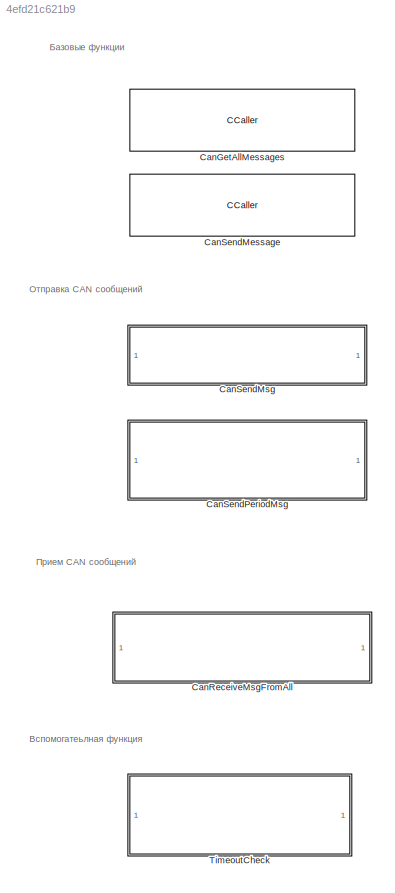
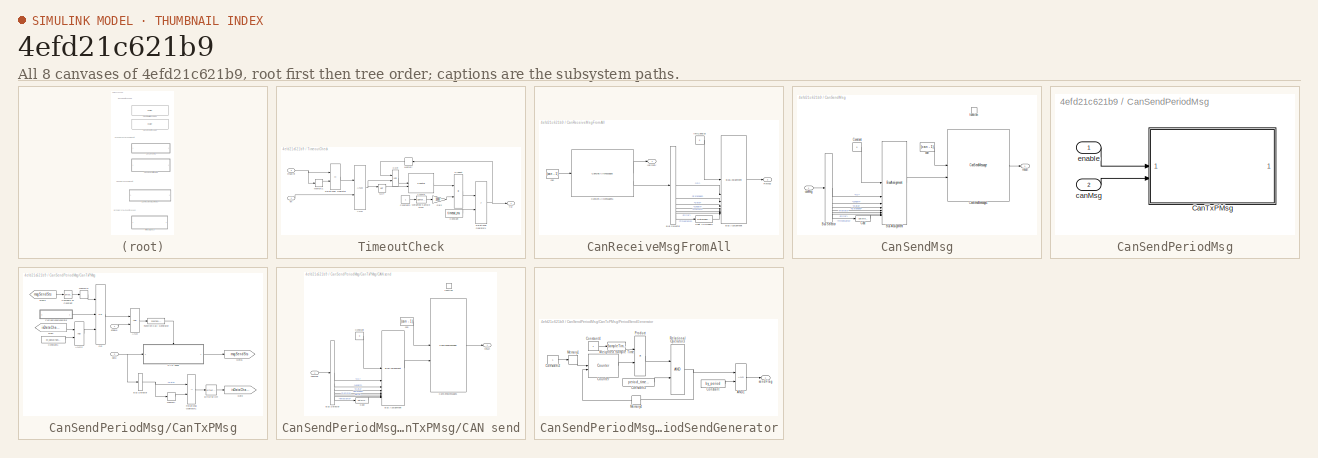
[diagram: thumbnail index - all 8 canvases of the model, root first then tree order]
MODEL slx_4efd21c621b9
KIND library
CONFIG AbsTol = auto
CONFIG EnableMultiTasking = off
CONFIG FixedStep = auto
CONFIG MaxStep = auto
CONFIG MinStep = auto
CONFIG RelTol = 1e-3
CONFIG SampleTimeConstraint = Unconstrained
CONFIG SolverName = VariableStepAuto
CONFIG StartTime = 0.0
CONFIG StopTime = 10.0
BLOCK [CCaller] CanGetAllMessages
  FunctionName = CanGetAllMessages
  PortSpecificationStruct = %)30     .    < 4   8    (     @         %    "     ,    !     0         %  0 "0    $    _    07)G3F%M90  4&]R=$YA;64 4V-O<&4     26YD97@     5'EP90      4VEZ90      27-';&]B86P   X    P    !@    @    $          4    (     0    ,    !         !   P!O=70 #@   #     &    "     0         !0    @    !     P    $         $  # &]U=  .    .     8    (    !          %    "     $    &     0         0    !@...<+1469ch>
BLOCK [CCaller] CanSendMessage
  FunctionName = CanSendMessage
  PortSpecificationStruct = %)30     .    < 4   8    (     @         %    "     ,    !     0         %  0 "0    $    _    07)G3F%M90  4&]R=$YA;64 4V-O<&4     26YD97@     5'EP90      4VEZ90      27-';&]B86P   X    P    !@    @    $          4    (     0    ,    !         !   P!O=70 #@   #     &    "     0         !0    @    !     P    $         $  # &]U=  .    .     8    (    !          %    "     $    &     0         0    !@...<+1469ch>
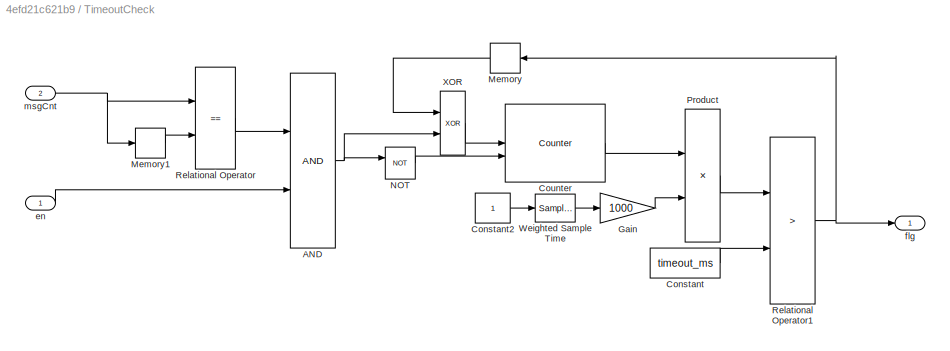
BLOCK [SubSystem] TimeoutCheck
BLOCK [Logic] TimeoutCheck/AND
  AllPortsSameDT = off
  OutDataTypeStr = boolean
BLOCK [Constant] TimeoutCheck/Constant
  OutDataTypeStr = uint32
  Value = timeout_ms
BLOCK [Constant] TimeoutCheck/Constant2
  OutDataTypeStr = uint32
BLOCK [Reference] TimeoutCheck/Counter  REF=dspswit3/Counter
  SourceBlock = dspswit3/Counter
  SourceType = Counter
BLOCK [Gain] TimeoutCheck/Gain
  Gain = 1000
  OutDataTypeStr = uint32
  ParamDataTypeStr = single
  RndMeth = Simplest
BLOCK [Memory] TimeoutCheck/Memory
  InheritSampleTime = on
  NameLocation = top
BLOCK [Memory] TimeoutCheck/Memory1
  InheritSampleTime = on
BLOCK [Logic] TimeoutCheck/NOT
  AllPortsSameDT = off
  IconShape = distinctive
  Operator = NOT
  OutDataTypeStr = boolean
BLOCK [Product] TimeoutCheck/Product
  OutDataTypeStr = uint32
  RndMeth = Simplest
BLOCK [RelationalOperator] TimeoutCheck/Relational Operator
  InputSameDT = off
  Operator = ==
  OutDataTypeStr = boolean
  RndMeth = Simplest
  ZeroCross = off
BLOCK [RelationalOperator] TimeoutCheck/Relational Operator1
  InputSameDT = off
  Operator = >
  OutDataTypeStr = boolean
  RndMeth = Simplest
  ZeroCross = off
BLOCK [SampleTimeMath] TimeoutCheck/Weighted Sample Time
  OutDataTypeStr = single
  TsampMathOp = Ts Only
  weightValue = uint32(1)
BLOCK [Logic] TimeoutCheck/XOR
  AllPortsSameDT = off
  Operator = XOR
  OutDataTypeStr = boolean
BLOCK [Inport] TimeoutCheck/en
BLOCK [Outport] TimeoutCheck/flg
BLOCK [Inport] TimeoutCheck/msgCnt
  Port = 2
BLOCK [SubSystem] СanReceiveMsgFromAll
  TreatAsAtomicUnit = on
BLOCK [BusAssignment] СanReceiveMsgFromAll/Bus Assignment
  AssignedSignals = ID,Extended,Data,Length,Remote,Error,Timestamp
BLOCK [BusSelector] СanReceiveMsgFromAll/Bus Selector
  OutputSignals = ID,Extended,Data,Length,Remote,Error,Timestamp
BLOCK [Reference] СanReceiveMsgFromAll/CanGetAllMessages1  REF=$bdroot/CanGetAllMessages
  SourceBlock = $bdroot/CanGetAllMessages
  SourceType = CCaller
BLOCK [DataTypeConversion] СanReceiveMsgFromAll/Cast To Double
  OutDataTypeStr = double
  RndMeth = Floor
  SaturateOnIntegerOverflow = off
BLOCK [Outport] СanReceiveMsgFromAll/IsEmpty
BLOCK [Outport] СanReceiveMsgFromAll/RxMsg
  OutDataTypeStr = Bus: CAN_MESSAGE_BUS
  Port = 2
BLOCK [Constant] СanReceiveMsgFromAll/can
  OutDataTypeStr = int32
  Value = (can - 1)
BLOCK [Constant] СanReceiveMsgFromAll/initCanBus
  OutDataTypeStr = Bus: CAN_MESSAGE_BUS
  Value = 0
BLOCK [SubSystem] СanSendMsg
BLOCK [BusAssignment] СanSendMsg/Bus Assignment
  AssignedSignals = ID,Length,Data,Extended,Remote,Error,Timestamp
BLOCK [BusSelector] СanSendMsg/Bus Selector
  OutputSignals = ID,Length,Data,Extended,Remote,Error,Timestamp
BLOCK [Reference] СanSendMsg/CanSendMessage1  REF=$bdroot/CanSendMessage
  SourceBlock = $bdroot/CanSendMessage
  SourceType = CCaller
BLOCK [DataTypeConversion] СanSendMsg/Cast
  OutDataTypeStr = uint32
  RndMeth = Simplest
  SaturateOnIntegerOverflow = off
BLOCK [Constant] СanSendMsg/Constant
  OutDataTypeStr = Bus: CAN_Msg_t
  Value = 0
BLOCK [Constant] СanSendMsg/can
  OutDataTypeStr = int32
  Value = (can - 1)
BLOCK [Inport] СanSendMsg/canMsg
  OutDataTypeStr = Bus: CAN_MESSAGE_BUS
BLOCK [TriggerPort] СanSendMsg/function
  StatesWhenEnabling = held
  TriggerType = function-call
  VariantControl = (inherit)
BLOCK [Outport] СanSendMsg/result
  OutDataTypeStr = boolean
BLOCK [SubSystem] СanSendPeriodMsg
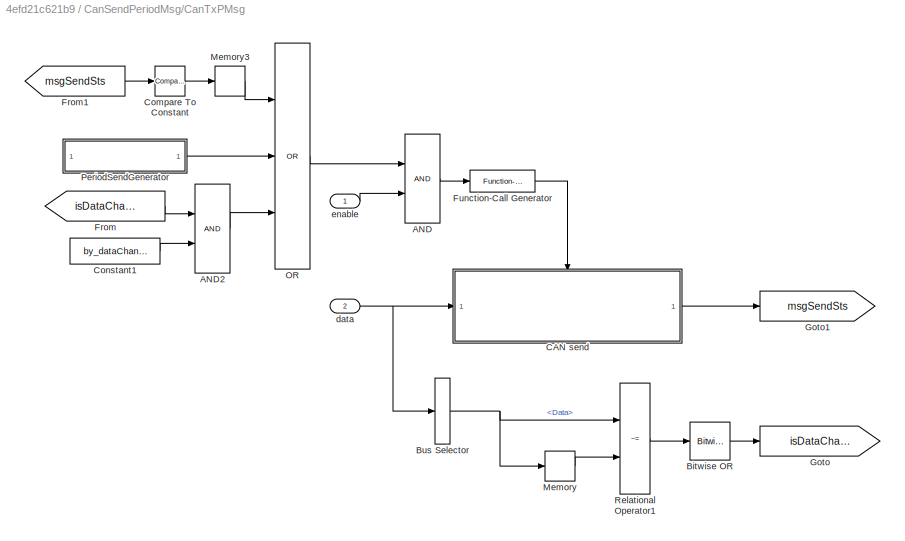
BLOCK [SubSystem] СanSendPeriodMsg/CanTxPMsg
  SystemSampleTime = sample_time
  TreatAsAtomicUnit = on
BLOCK [Logic] СanSendPeriodMsg/CanTxPMsg/AND
  AllPortsSameDT = off
  OutDataTypeStr = boolean
BLOCK [Logic] СanSendPeriodMsg/CanTxPMsg/AND2
  AllPortsSameDT = off
  OutDataTypeStr = boolean
BLOCK [Reference] СanSendPeriodMsg/CanTxPMsg/Bitwise OR  REF=simulink/Logic and Bit
Operations/Bitwise
Operator
  LibrarySourceBlock = simulink/Quick Insert/Logic and Bit\nOperations/Bitwise OR
  SourceBlock = simulink/Logic and Bit\nOperations/Bitwise\nOperator
  SourceType = Bitwise Operator
BLOCK [BusSelector] СanSendPeriodMsg/CanTxPMsg/Bus Selector
  OutputSignals = Data
BLOCK [SubSystem] СanSendPeriodMsg/CanTxPMsg/CAN send
  TreatAsAtomicUnit = on
BLOCK [BusAssignment] СanSendPeriodMsg/CanTxPMsg/CAN send/Bus Assignment
  AssignedSignals = ID,Length,Data,Extended,Remote,Error,Timestamp
BLOCK [BusSelector] СanSendPeriodMsg/CanTxPMsg/CAN send/Bus Selector
  OutputSignals = ID,Length,Data,Extended,Remote,Error,Timestamp
BLOCK [Reference] СanSendPeriodMsg/CanTxPMsg/CAN send/CanSendMessage1  REF=$bdroot/CanSendMessage
  SourceBlock = $bdroot/CanSendMessage
  SourceType = CCaller
BLOCK [DataTypeConversion] СanSendPeriodMsg/CanTxPMsg/CAN send/Cast
  OutDataTypeStr = uint32
  RndMeth = Simplest
  SaturateOnIntegerOverflow = off
BLOCK [Constant] СanSendPeriodMsg/CanTxPMsg/CAN send/Constant
  OutDataTypeStr = Bus: CAN_Msg_t
  Value = 0
BLOCK [Constant] СanSendPeriodMsg/CanTxPMsg/CAN send/can
  OutDataTypeStr = int32
  Value = (can - 1)
BLOCK [Inport] СanSendPeriodMsg/CanTxPMsg/CAN send/canMsg
  OutDataTypeStr = Bus: CAN_MESSAGE_BUS
BLOCK [TriggerPort] СanSendPeriodMsg/CanTxPMsg/CAN send/function
  StatesWhenEnabling = held
  TriggerType = function-call
  VariantControl = (inherit)
BLOCK [Outport] СanSendPeriodMsg/CanTxPMsg/CAN send/result
  OutDataTypeStr = boolean
BLOCK [Reference] СanSendPeriodMsg/CanTxPMsg/Compare To Constant  REF=simulink/Logic and Bit
Operations/Compare
To Constant
  SourceBlock = simulink/Logic and Bit\nOperations/Compare\nTo Constant
  SourceType = Compare To Constant
BLOCK [Constant] СanSendPeriodMsg/CanTxPMsg/Constant1
  OutDataTypeStr = boolean
  Value = by_dataChange
BLOCK [From] СanSendPeriodMsg/CanTxPMsg/From
  GotoTag = isDataChanged
BLOCK [From] СanSendPeriodMsg/CanTxPMsg/From1
  GotoTag = msgSendSts
BLOCK [Reference] СanSendPeriodMsg/CanTxPMsg/Function-Call Generator  REF=simulink/Ports &
Subsystems/Function-Call
Generator
  SourceBlock = simulink/Ports &\nSubsystems/Function-Call\nGenerator
  SourceType = Function-Call Generator
BLOCK [Goto] СanSendPeriodMsg/CanTxPMsg/Goto
  GotoTag = isDataChanged
BLOCK [Goto] СanSendPeriodMsg/CanTxPMsg/Goto1
  GotoTag = msgSendSts
BLOCK [Memory] СanSendPeriodMsg/CanTxPMsg/Memory
  InheritSampleTime = on
BLOCK [Memory] СanSendPeriodMsg/CanTxPMsg/Memory3
  InheritSampleTime = on
BLOCK [Logic] СanSendPeriodMsg/CanTxPMsg/OR
  AllPortsSameDT = off
  Inputs = 3
  Operator = OR
  OutDataTypeStr = boolean
BLOCK [SubSystem] СanSendPeriodMsg/CanTxPMsg/PeriodSendGenerator
BLOCK [Logic] СanSendPeriodMsg/CanTxPMsg/PeriodSendGenerator/AND1
  AllPortsSameDT = off
  OutDataTypeStr = boolean
BLOCK [Constant] СanSendPeriodMsg/CanTxPMsg/PeriodSendGenerator/Constant
  OutDataTypeStr = boolean
  Value = by_period
BLOCK [Constant] СanSendPeriodMsg/CanTxPMsg/PeriodSendGenerator/Constant2
  OutDataTypeStr = uint32
BLOCK [Constant] СanSendPeriodMsg/CanTxPMsg/PeriodSendGenerator/Constant3
  OutDataTypeStr = uint32
  Value = period_time*1000
BLOCK [Constant] СanSendPeriodMsg/CanTxPMsg/PeriodSendGenerator/Constant4
  OutDataTypeStr = uint32
BLOCK [Reference] СanSendPeriodMsg/CanTxPMsg/PeriodSendGenerator/Counter  REF=dspswit3/Counter
  SourceBlock = dspswit3/Counter
  SourceType = Counter
BLOCK [Memory] СanSendPeriodMsg/CanTxPMsg/PeriodSendGenerator/Memory1
  InheritSampleTime = on
BLOCK [Memory] СanSendPeriodMsg/CanTxPMsg/PeriodSendGenerator/Memory4
  InheritSampleTime = on
  NameLocation = top
BLOCK [Product] СanSendPeriodMsg/CanTxPMsg/PeriodSendGenerator/Product
  OutDataTypeStr = uint32
  RndMeth = Simplest
BLOCK [RelationalOperator] СanSendPeriodMsg/CanTxPMsg/PeriodSendGenerator/Relational Operator3
  InputSameDT = off
  OutDataTypeStr = boolean
  RndMeth = Simplest
  ZeroCross = off
BLOCK [SampleTimeMath] СanSendPeriodMsg/CanTxPMsg/PeriodSendGenerator/Weighted Sample Time
  OutDataTypeStr = single
  TsampMathOp = Ts Only
  weightValue = uint32(1000)
BLOCK [Outport] СanSendPeriodMsg/CanTxPMsg/PeriodSendGenerator/sendFlag
BLOCK [RelationalOperator] СanSendPeriodMsg/CanTxPMsg/Relational Operator1
  InputSameDT = off
  Operator = ~=
  OutDataTypeStr = boolean
  RndMeth = Simplest
BLOCK [Inport] СanSendPeriodMsg/CanTxPMsg/data
  Port = 2
BLOCK [Inport] СanSendPeriodMsg/CanTxPMsg/enable
  OutDataTypeStr = boolean
BLOCK [Inport] СanSendPeriodMsg/canMsg
  OutDataTypeStr = Bus: CAN_MESSAGE_BUS
  Port = 2
BLOCK [Inport] СanSendPeriodMsg/enable
  OutDataTypeStr = boolean
ANNOTATION (root): Базовые функции
ANNOTATION (root): Вспомогатеьлная функция
ANNOTATION (root): Отправка CAN сообщений
ANNOTATION (root): Прием CAN сообщений
NET TimeoutCheck/AND:1 -> TimeoutCheck/NOT:1, TimeoutCheck/XOR:2
LINE TimeoutCheck/Constant2:1 -> TimeoutCheck/Weighted Sample Time:1
LINE TimeoutCheck/Constant:1 -> TimeoutCheck/Relational Operator1:2
LINE TimeoutCheck/Counter:1 -> TimeoutCheck/Product:1
LINE TimeoutCheck/Gain:1 -> TimeoutCheck/Product:2
LINE TimeoutCheck/Memory1:1 -> TimeoutCheck/Relational Operator:2
LINE TimeoutCheck/Memory:1 -> TimeoutCheck/XOR:1
LINE TimeoutCheck/NOT:1 -> TimeoutCheck/Counter:2
LINE TimeoutCheck/Product:1 -> TimeoutCheck/Relational Operator1:1
NET TimeoutCheck/Relational Operator1:1 -> TimeoutCheck/Memory:1, TimeoutCheck/flg:1
LINE TimeoutCheck/Relational Operator:1 -> TimeoutCheck/AND:1
LINE TimeoutCheck/Weighted Sample Time:1 -> TimeoutCheck/Gain:1
LINE TimeoutCheck/XOR:1 -> TimeoutCheck/Counter:1
LINE TimeoutCheck/en:1 -> TimeoutCheck/AND:2
NET TimeoutCheck/msgCnt:1 -> TimeoutCheck/Memory1:1, TimeoutCheck/Relational Operator:1
LINE СanReceiveMsgFromAll/Bus Assignment:1 -> СanReceiveMsgFromAll/RxMsg:1
LINE СanReceiveMsgFromAll/Bus Selector:1 -> СanReceiveMsgFromAll/Bus Assignment:2
LINE СanReceiveMsgFromAll/Bus Selector:2 -> СanReceiveMsgFromAll/Bus Assignment:3
LINE СanReceiveMsgFromAll/Bus Selector:3 -> СanReceiveMsgFromAll/Bus Assignment:4
LINE СanReceiveMsgFromAll/Bus Selector:4 -> СanReceiveMsgFromAll/Bus Assignment:5
LINE СanReceiveMsgFromAll/Bus Selector:5 -> СanReceiveMsgFromAll/Bus Assignment:6
LINE СanReceiveMsgFromAll/Bus Selector:6 -> СanReceiveMsgFromAll/Bus Assignment:7
LINE СanReceiveMsgFromAll/Bus Selector:7 -> СanReceiveMsgFromAll/Cast To Double:1
LINE СanReceiveMsgFromAll/CanGetAllMessages1:1 -> СanReceiveMsgFromAll/IsEmpty:1
LINE СanReceiveMsgFromAll/CanGetAllMessages1:2 -> СanReceiveMsgFromAll/Bus Selector:1
LINE СanReceiveMsgFromAll/Cast To Double:1 -> СanReceiveMsgFromAll/Bus Assignment:8
LINE СanReceiveMsgFromAll/can:1 -> СanReceiveMsgFromAll/CanGetAllMessages1:1
LINE СanReceiveMsgFromAll/initCanBus:1 -> СanReceiveMsgFromAll/Bus Assignment:1
LINE СanSendMsg/Bus Assignment:1 -> СanSendMsg/CanSendMessage1:2
LINE СanSendMsg/Bus Selector:1 -> СanSendMsg/Bus Assignment:2
LINE СanSendMsg/Bus Selector:2 -> СanSendMsg/Bus Assignment:3
LINE СanSendMsg/Bus Selector:3 -> СanSendMsg/Bus Assignment:4
LINE СanSendMsg/Bus Selector:4 -> СanSendMsg/Bus Assignment:5
LINE СanSendMsg/Bus Selector:5 -> СanSendMsg/Bus Assignment:6
LINE СanSendMsg/Bus Selector:6 -> СanSendMsg/Bus Assignment:7
LINE СanSendMsg/Bus Selector:7 -> СanSendMsg/Cast:1
LINE СanSendMsg/CanSendMessage1:1 -> СanSendMsg/result:1
LINE СanSendMsg/Cast:1 -> СanSendMsg/Bus Assignment:8
LINE СanSendMsg/Constant:1 -> СanSendMsg/Bus Assignment:1
LINE СanSendMsg/can:1 -> СanSendMsg/CanSendMessage1:1
LINE СanSendMsg/canMsg:1 -> СanSendMsg/Bus Selector:1
LINE СanSendPeriodMsg/CanTxPMsg/AND2:1 -> СanSendPeriodMsg/CanTxPMsg/OR:3
LINE СanSendPeriodMsg/CanTxPMsg/AND:1 -> СanSendPeriodMsg/CanTxPMsg/Function-Call Generator:1
LINE СanSendPeriodMsg/CanTxPMsg/Bitwise OR:1 -> СanSendPeriodMsg/CanTxPMsg/Goto:1
NET СanSendPeriodMsg/CanTxPMsg/Bus Selector:1 -> СanSendPeriodMsg/CanTxPMsg/Memory:1, СanSendPeriodMsg/CanTxPMsg/Relational Operator1:1
LINE СanSendPeriodMsg/CanTxPMsg/CAN send/Bus Assignment:1 -> СanSendPeriodMsg/CanTxPMsg/CAN send/CanSendMessage1:2
LINE СanSendPeriodMsg/CanTxPMsg/CAN send/Bus Selector:1 -> СanSendPeriodMsg/CanTxPMsg/CAN send/Bus Assignment:2
LINE СanSendPeriodMsg/CanTxPMsg/CAN send/Bus Selector:2 -> СanSendPeriodMsg/CanTxPMsg/CAN send/Bus Assignment:3
LINE СanSendPeriodMsg/CanTxPMsg/CAN send/Bus Selector:3 -> СanSendPeriodMsg/CanTxPMsg/CAN send/Bus Assignment:4
LINE СanSendPeriodMsg/CanTxPMsg/CAN send/Bus Selector:4 -> СanSendPeriodMsg/CanTxPMsg/CAN send/Bus Assignment:5
LINE СanSendPeriodMsg/CanTxPMsg/CAN send/Bus Selector:5 -> СanSendPeriodMsg/CanTxPMsg/CAN send/Bus Assignment:6
LINE СanSendPeriodMsg/CanTxPMsg/CAN send/Bus Selector:6 -> СanSendPeriodMsg/CanTxPMsg/CAN send/Bus Assignment:7
LINE СanSendPeriodMsg/CanTxPMsg/CAN send/Bus Selector:7 -> СanSendPeriodMsg/CanTxPMsg/CAN send/Cast:1
LINE СanSendPeriodMsg/CanTxPMsg/CAN send/CanSendMessage1:1 -> СanSendPeriodMsg/CanTxPMsg/CAN send/result:1
LINE СanSendPeriodMsg/CanTxPMsg/CAN send/Cast:1 -> СanSendPeriodMsg/CanTxPMsg/CAN send/Bus Assignment:8
LINE СanSendPeriodMsg/CanTxPMsg/CAN send/Constant:1 -> СanSendPeriodMsg/CanTxPMsg/CAN send/Bus Assignment:1
LINE СanSendPeriodMsg/CanTxPMsg/CAN send/can:1 -> СanSendPeriodMsg/CanTxPMsg/CAN send/CanSendMessage1:1
LINE СanSendPeriodMsg/CanTxPMsg/CAN send/canMsg:1 -> СanSendPeriodMsg/CanTxPMsg/CAN send/Bus Selector:1
LINE СanSendPeriodMsg/CanTxPMsg/CAN send:1 -> СanSendPeriodMsg/CanTxPMsg/Goto1:1
LINE СanSendPeriodMsg/CanTxPMsg/Compare To Constant:1 -> СanSendPeriodMsg/CanTxPMsg/Memory3:1
LINE СanSendPeriodMsg/CanTxPMsg/Constant1:1 -> СanSendPeriodMsg/CanTxPMsg/AND2:2
LINE СanSendPeriodMsg/CanTxPMsg/From1:1 -> СanSendPeriodMsg/CanTxPMsg/Compare To Constant:1
LINE СanSendPeriodMsg/CanTxPMsg/From:1 -> СanSendPeriodMsg/CanTxPMsg/AND2:1
LINE СanSendPeriodMsg/CanTxPMsg/Function-Call Generator:1 -> СanSendPeriodMsg/CanTxPMsg/CAN send:trigger
LINE СanSendPeriodMsg/CanTxPMsg/Memory3:1 -> СanSendPeriodMsg/CanTxPMsg/OR:1
LINE СanSendPeriodMsg/CanTxPMsg/Memory:1 -> СanSendPeriodMsg/CanTxPMsg/Relational Operator1:2
LINE СanSendPeriodMsg/CanTxPMsg/OR:1 -> СanSendPeriodMsg/CanTxPMsg/AND:1
LINE СanSendPeriodMsg/CanTxPMsg/PeriodSendGenerator/AND1:1 -> СanSendPeriodMsg/CanTxPMsg/PeriodSendGenerator/sendFlag:1
LINE СanSendPeriodMsg/CanTxPMsg/PeriodSendGenerator/Constant2:1 -> СanSendPeriodMsg/CanTxPMsg/PeriodSendGenerator/Memory1:1
LINE СanSendPeriodMsg/CanTxPMsg/PeriodSendGenerator/Constant3:1 -> СanSendPeriodMsg/CanTxPMsg/PeriodSendGenerator/Relational Operator3:2
LINE СanSendPeriodMsg/CanTxPMsg/PeriodSendGenerator/Constant4:1 -> СanSendPeriodMsg/CanTxPMsg/PeriodSendGenerator/Weighted Sample Time:1
LINE СanSendPeriodMsg/CanTxPMsg/PeriodSendGenerator/Constant:1 -> СanSendPeriodMsg/CanTxPMsg/PeriodSendGenerator/AND1:2
LINE СanSendPeriodMsg/CanTxPMsg/PeriodSendGenerator/Counter:1 -> СanSendPeriodMsg/CanTxPMsg/PeriodSendGenerator/Product:2
LINE СanSendPeriodMsg/CanTxPMsg/PeriodSendGenerator/Memory1:1 -> СanSendPeriodMsg/CanTxPMsg/PeriodSendGenerator/Counter:1
LINE СanSendPeriodMsg/CanTxPMsg/PeriodSendGenerator/Memory4:1 -> СanSendPeriodMsg/CanTxPMsg/PeriodSendGenerator/Counter:2
LINE СanSendPeriodMsg/CanTxPMsg/PeriodSendGenerator/Product:1 -> СanSendPeriodMsg/CanTxPMsg/PeriodSendGenerator/Relational Operator3:1
NET СanSendPeriodMsg/CanTxPMsg/PeriodSendGenerator/Relational Operator3:1 -> СanSendPeriodMsg/CanTxPMsg/PeriodSendGenerator/AND1:1, СanSendPeriodMsg/CanTxPMsg/PeriodSendGenerator/Memory4:1
LINE СanSendPeriodMsg/CanTxPMsg/PeriodSendGenerator/Weighted Sample Time:1 -> СanSendPeriodMsg/CanTxPMsg/PeriodSendGenerator/Product:1
LINE СanSendPeriodMsg/CanTxPMsg/PeriodSendGenerator:1 -> СanSendPeriodMsg/CanTxPMsg/OR:2
LINE СanSendPeriodMsg/CanTxPMsg/Relational Operator1:1 -> СanSendPeriodMsg/CanTxPMsg/Bitwise OR:1
NET СanSendPeriodMsg/CanTxPMsg/data:1 -> СanSendPeriodMsg/CanTxPMsg/Bus Selector:1, СanSendPeriodMsg/CanTxPMsg/CAN send:1
LINE СanSendPeriodMsg/CanTxPMsg/enable:1 -> СanSendPeriodMsg/CanTxPMsg/AND:2
LINE СanSendPeriodMsg/canMsg:1 -> СanSendPeriodMsg/CanTxPMsg:2
LINE СanSendPeriodMsg/enable:1 -> СanSendPeriodMsg/CanTxPMsg:1
note: NET lines group one-source signal fan-out (src -> all destinations, sorted); 1:1 wires keep LINE
